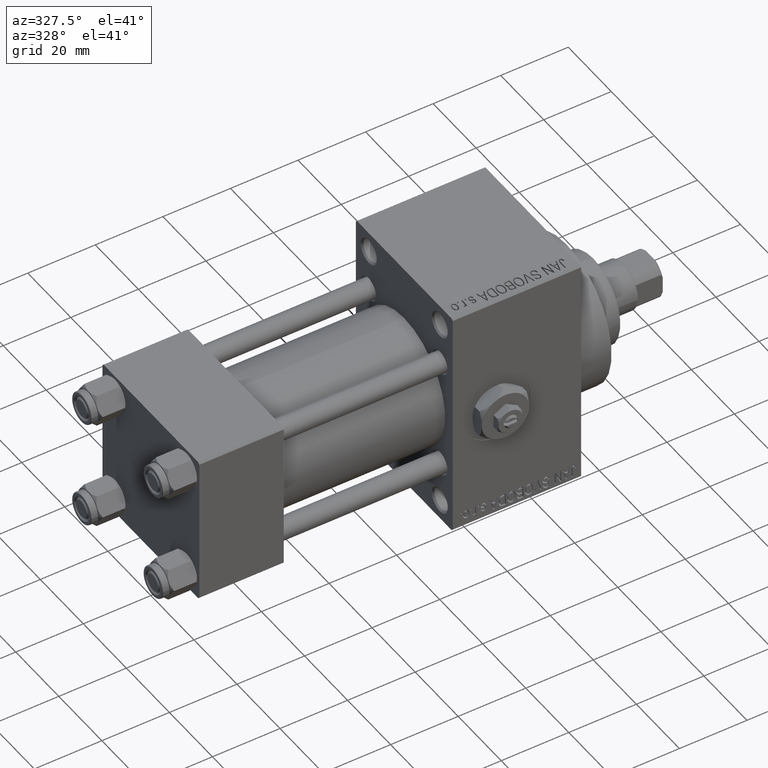
[diagram: clean part render]
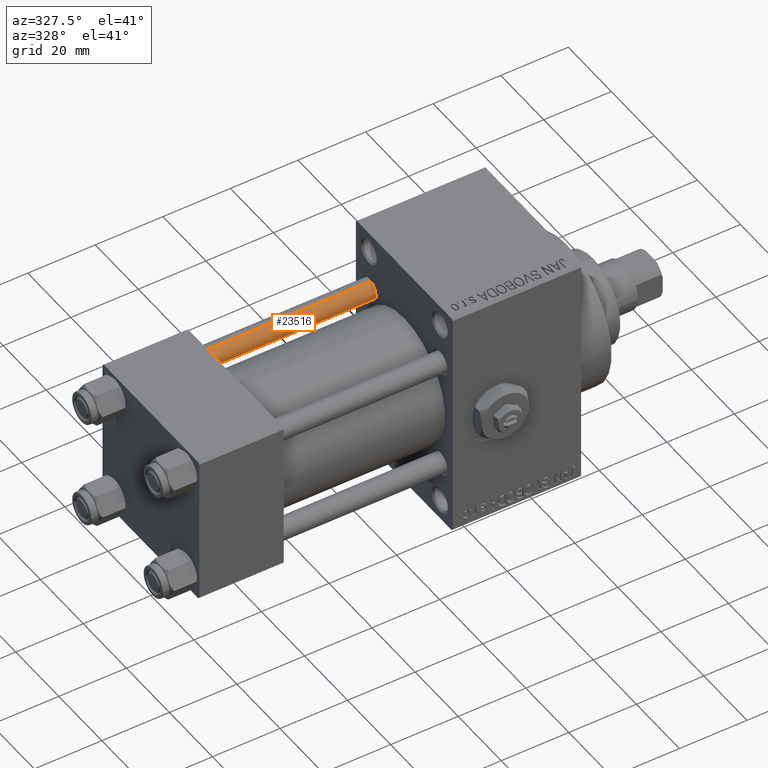
[diagram: same view with one face highlighted and labeled with its STEP entity id]
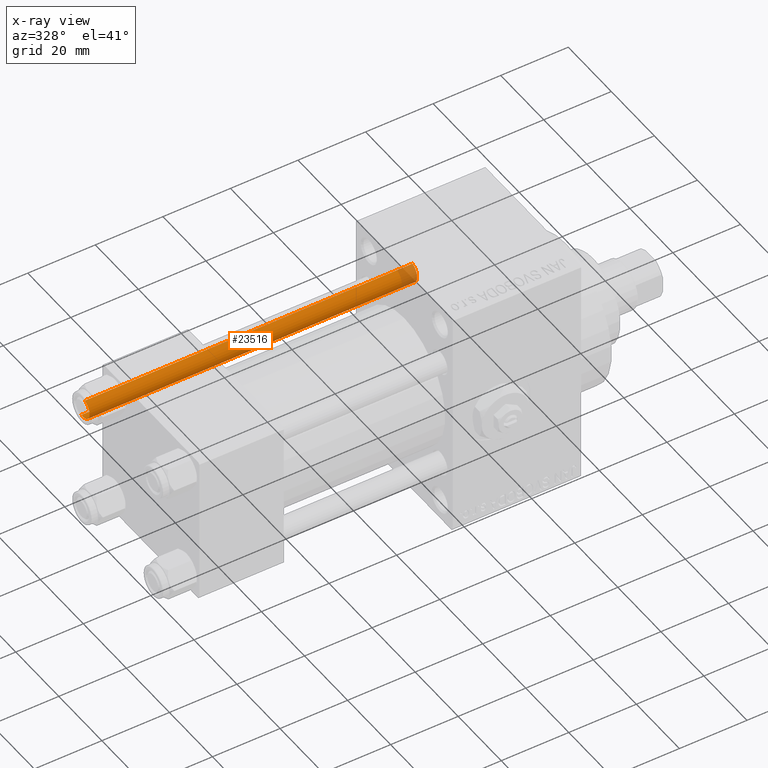
[diagram: x-ray of the same camera — body ghosted, the highlighted face saturated]
A machine part, auxiliary view. The second image highlights one B-rep face of the part: STEP entity #23516.
The next image is the same camera in x-ray: the body ghosted, the highlighted face saturated — about 5% of this face is hidden behind the body in this view.
In plain terms, the highlighted cylindrical surface (edge-blend (fillet) strip) has radius 3 mm, axis along (-1, -0, 0).
Its self-contained STEP definition (entity closure, byte-faithful):
#87 = ORIENTED_EDGE ( 'NONE', *, *, #20233, .T. ) ;
#1326 = FACE_OUTER_BOUND ( 'NONE', #4464, .T. ) ;
#3520 = AXIS2_PLACEMENT_3D ( 'NONE', #10675, #37222, #6989 ) ;
#3704 = ORIENTED_EDGE ( 'NONE', *, *, #8471, .F. ) ;
#4464 = EDGE_LOOP ( 'NONE', ( #3704, #27891, #87, #20915 ) ) ;
#4977 = CARTESIAN_POINT ( 'NONE',  ( 3.000000000000000444, 3.673940397442060361E-16, 97.50000000000001421 ) ) ;
#6972 = CARTESIAN_POINT ( 'NONE',  ( -3.000000000000000444, 0.000000000000000000, 0.5000000000000281997 ) ) ;
#6989 = DIRECTION ( 'NONE',  ( 1.000000000000000000, 0.000000000000000000, 0.000000000000000000 ) ) ;
#7720 = VERTEX_POINT ( 'NONE', #11258 ) ;
#8008 = CARTESIAN_POINT ( 'NONE',  ( 0.000000000000000000, 0.000000000000000000, 97.50000000000001421 ) ) ;
#8471 = EDGE_CURVE ( 'NONE', #42062, #7720, #17257, .T. ) ;
#10604 = CIRCLE ( 'NONE', #3520, 3.000000000000000444 ) ;
#10675 = CARTESIAN_POINT ( 'NONE',  ( 0.000000000000000000, 0.000000000000000000, 0.5000000000000281997 ) ) ;
#11258 = CARTESIAN_POINT ( 'NONE',  ( 3.000000000000000444, 3.673940397442060361E-16, 0.5000000000000281997 ) ) ;
#14910 = CARTESIAN_POINT ( 'NONE',  ( -3.000000000000000444, 0.000000000000000000, 97.50000000000001421 ) ) ;
#16653 = LINE ( 'NONE', #21083, #40915 ) ;
#17257 = LINE ( 'NONE', #21676, #42980 ) ;
#19354 = DIRECTION ( 'NONE',  ( 0.000000000000000000, 0.000000000000000000, -1.000000000000000000 ) ) ;
#19780 = CARTESIAN_POINT ( 'NONE',  ( 0.000000000000000000, 0.000000000000000000, 98.00000000000000000 ) ) ;
#20233 = EDGE_CURVE ( 'NONE', #20279, #36696, #16653, .T. ) ;
#20279 = VERTEX_POINT ( 'NONE', #14910 ) ;
#20915 = ORIENTED_EDGE ( 'NONE', *, *, #31947, .T. ) ;
#21083 = CARTESIAN_POINT ( 'NONE',  ( -3.000000000000000444, 0.000000000000000000, 98.00000000000000000 ) ) ;
#21676 = CARTESIAN_POINT ( 'NONE',  ( 3.000000000000000444, 3.673940397442060361E-16, 98.00000000000000000 ) ) ;
#23516 = ADVANCED_FACE ( 'NONE', ( #1326 ), #34273, .T. ) ;
#27223 = DIRECTION ( 'NONE',  ( 1.000000000000000000, 0.000000000000000000, 0.000000000000000000 ) ) ;
#27891 = ORIENTED_EDGE ( 'NONE', *, *, #28403, .T. ) ;
#28403 = EDGE_CURVE ( 'NONE', #42062, #20279, #33259, .T. ) ;
#28566 = DIRECTION ( 'NONE',  ( -0.000000000000000000, -0.000000000000000000, -1.000000000000000000 ) ) ;
#31906 = DIRECTION ( 'NONE',  ( -0.000000000000000000, -0.000000000000000000, -1.000000000000000000 ) ) ;
#31947 = EDGE_CURVE ( 'NONE', #36696, #7720, #10604, .T. ) ;
#33259 = CIRCLE ( 'NONE', #41890, 3.000000000000000444 ) ;
#34273 = CYLINDRICAL_SURFACE ( 'NONE', #43363, 3.000000000000000444 ) ;
#34769 = DIRECTION ( 'NONE',  ( -0.000000000000000000, -0.000000000000000000, -1.000000000000000000 ) ) ;
#36696 = VERTEX_POINT ( 'NONE', #6972 ) ;
#37222 = DIRECTION ( 'NONE',  ( -0.000000000000000000, -0.000000000000000000, 1.000000000000000000 ) ) ;
#38202 = DIRECTION ( 'NONE',  ( -1.000000000000000000, 0.000000000000000000, 0.000000000000000000 ) ) ;
#40915 = VECTOR ( 'NONE', #31906, 1000.000000000000000 ) ;
#41890 = AXIS2_PLACEMENT_3D ( 'NONE', #8008, #19354, #27223 ) ;
#42062 = VERTEX_POINT ( 'NONE', #4977 ) ;
#42980 = VECTOR ( 'NONE', #28566, 1000.000000000000000 ) ;
#43363 = AXIS2_PLACEMENT_3D ( 'NONE', #19780, #34769, #38202 ) ;